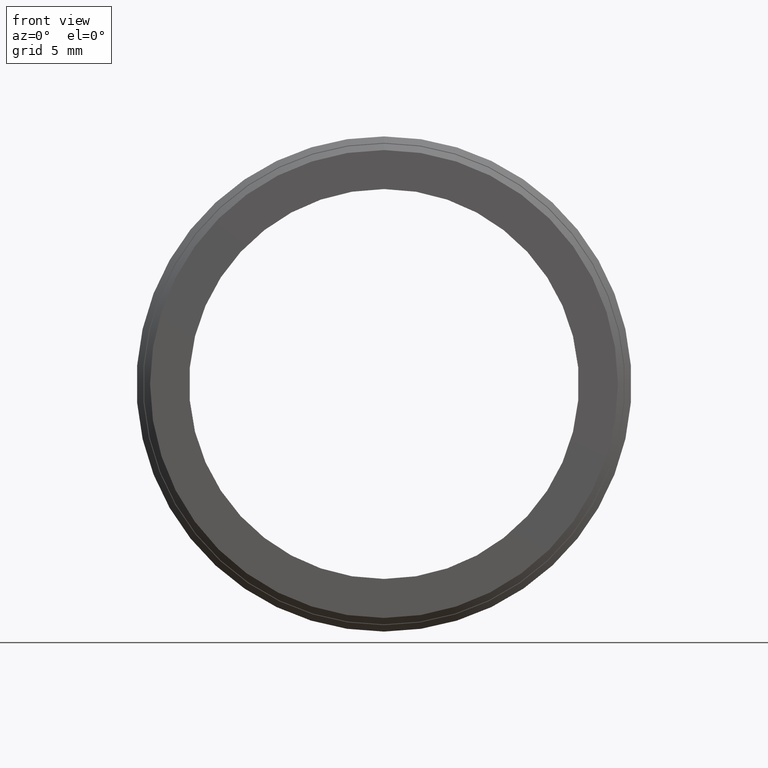
[diagram: clean part render]
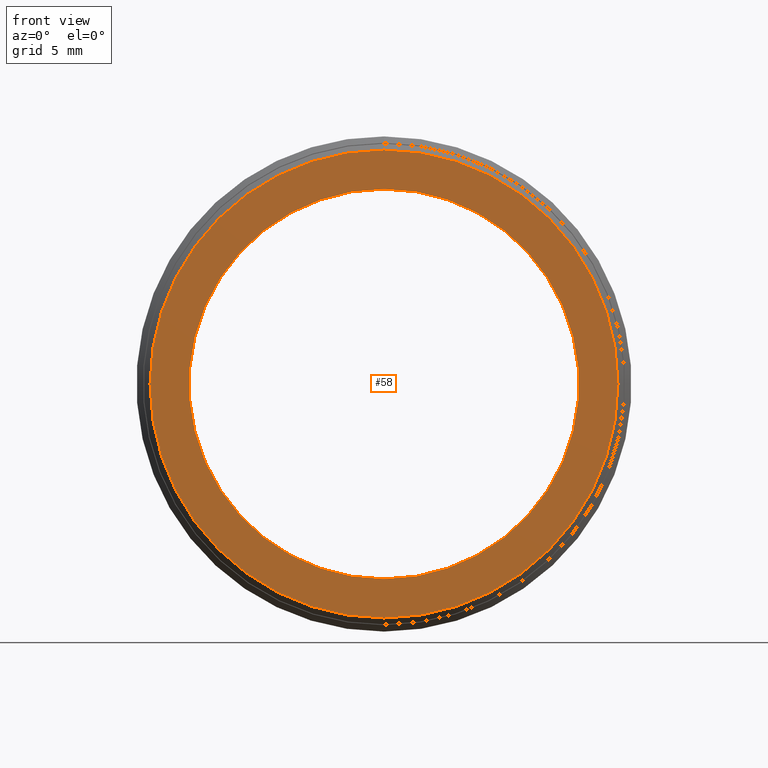
[diagram: same view with one face highlighted and labeled with its STEP entity id]
A machine part, front view. The second image highlights one B-rep face of the part: STEP entity #58.
In plain terms, the highlighted planar face has unit normal (0, -1, -0).
Its self-contained STEP definition (entity closure, byte-faithful):
#6 = EDGE_CURVE ( 'NONE', #66, #567, #45, .T. ) ;
#8 = PLANE ( 'NONE',  #480 ) ;
#45 = CIRCLE ( 'NONE', #607, 15.00000000000000000 ) ;
#58 = ADVANCED_FACE ( 'NONE', ( #695, #843 ), #8, .T. ) ;
#66 = VERTEX_POINT ( 'NONE', #245 ) ;
#69 = EDGE_CURVE ( 'NONE', #616, #243, #575, .T. ) ;
#80 = CARTESIAN_POINT ( 'NONE',  ( 0.0000000000000000000, 0.0000000000000000000, 0.0000000000000000000 ) ) ;
#139 = DIRECTION ( 'NONE',  ( 0.0000000000000000000, 0.0000000000000000000, -1.000000000000000000 ) ) ;
#153 = DIRECTION ( 'NONE',  ( -0.0000000000000000000, -1.000000000000000000, -0.0000000000000000000 ) ) ;
#162 = CARTESIAN_POINT ( 'NONE',  ( 2.234980408443920000E-015, 0.0000000000000000000, -18.00000000000000400 ) ) ;
#172 = CARTESIAN_POINT ( 'NONE',  ( 0.0000000000000000000, 0.0000000000000000000, -15.00000000000000000 ) ) ;
#205 = AXIS2_PLACEMENT_3D ( 'NONE', #634, #638, #642 ) ;
#213 = CIRCLE ( 'NONE', #205, 15.00000000000000000 ) ;
#243 = VERTEX_POINT ( 'NONE', #755 ) ;
#245 = CARTESIAN_POINT ( 'NONE',  ( 1.836970198721029600E-015, 0.0000000000000000000, 15.00000000000000000 ) ) ;
#255 = CARTESIAN_POINT ( 'NONE',  ( 0.0000000000000000000, 0.0000000000000000000, 0.0000000000000000000 ) ) ;
#288 = CIRCLE ( 'NONE', #321, 18.00000000000000400 ) ;
#321 = AXIS2_PLACEMENT_3D ( 'NONE', #855, #759, #139 ) ;
#350 = DIRECTION ( 'NONE',  ( 0.0000000000000000000, 0.0000000000000000000, -1.000000000000000000 ) ) ;
#365 = DIRECTION ( 'NONE',  ( -0.0000000000000000000, -1.000000000000000000, -0.0000000000000000000 ) ) ;
#397 = ORIENTED_EDGE ( 'NONE', *, *, #6, .F. ) ;
#434 = DIRECTION ( 'NONE',  ( 0.0000000000000000000, 0.0000000000000000000, -1.000000000000000000 ) ) ;
#456 = DIRECTION ( 'NONE',  ( 0.0000000000000000000, -1.000000000000000000, -0.0000000000000000000 ) ) ;
#469 = ORIENTED_EDGE ( 'NONE', *, *, #69, .T. ) ;
#480 = AXIS2_PLACEMENT_3D ( 'NONE', #816, #456, #434 ) ;
#508 = ORIENTED_EDGE ( 'NONE', *, *, #823, .T. ) ;
#529 = AXIS2_PLACEMENT_3D ( 'NONE', #255, #365, #841 ) ;
#538 = EDGE_LOOP ( 'NONE', ( #562, #397 ) ) ;
#562 = ORIENTED_EDGE ( 'NONE', *, *, #851, .F. ) ;
#567 = VERTEX_POINT ( 'NONE', #172 ) ;
#575 = CIRCLE ( 'NONE', #529, 18.00000000000000400 ) ;
#607 = AXIS2_PLACEMENT_3D ( 'NONE', #80, #153, #350 ) ;
#616 = VERTEX_POINT ( 'NONE', #162 ) ;
#634 = CARTESIAN_POINT ( 'NONE',  ( 0.0000000000000000000, 0.0000000000000000000, 0.0000000000000000000 ) ) ;
#638 = DIRECTION ( 'NONE',  ( -0.0000000000000000000, -1.000000000000000000, -0.0000000000000000000 ) ) ;
#642 = DIRECTION ( 'NONE',  ( 0.0000000000000000000, 0.0000000000000000000, -1.000000000000000000 ) ) ;
#695 = FACE_OUTER_BOUND ( 'NONE', #856, .T. ) ;
#755 = CARTESIAN_POINT ( 'NONE',  ( 0.0000000000000000000, 0.0000000000000000000, 18.00000000000000400 ) ) ;
#759 = DIRECTION ( 'NONE',  ( -0.0000000000000000000, -1.000000000000000000, -0.0000000000000000000 ) ) ;
#816 = CARTESIAN_POINT ( 'NONE',  ( 15.00000000000000000, 0.0000000000000000000, 0.0000000000000000000 ) ) ;
#823 = EDGE_CURVE ( 'NONE', #243, #616, #288, .T. ) ;
#841 = DIRECTION ( 'NONE',  ( 0.0000000000000000000, 0.0000000000000000000, -1.000000000000000000 ) ) ;
#843 = FACE_BOUND ( 'NONE', #538, .T. ) ;
#851 = EDGE_CURVE ( 'NONE', #567, #66, #213, .T. ) ;
#855 = CARTESIAN_POINT ( 'NONE',  ( 0.0000000000000000000, 0.0000000000000000000, 0.0000000000000000000 ) ) ;
#856 = EDGE_LOOP ( 'NONE', ( #508, #469 ) ) ;